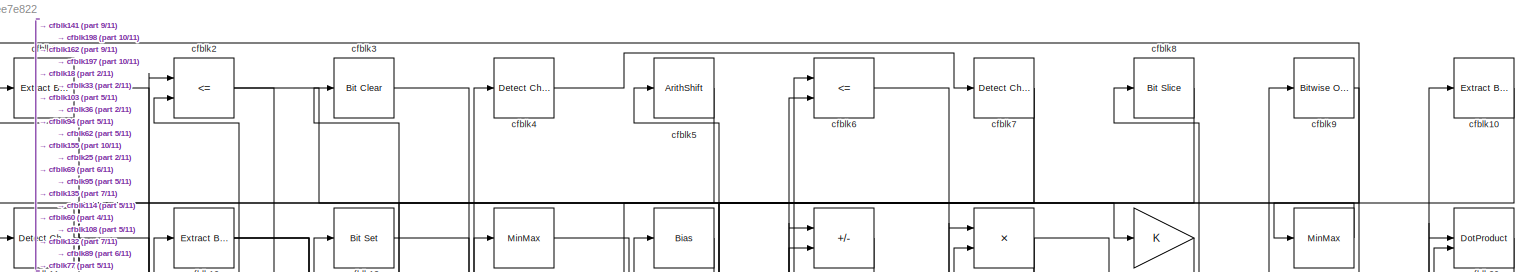
[diagram: root canvas - part 1/11, full width, top band]
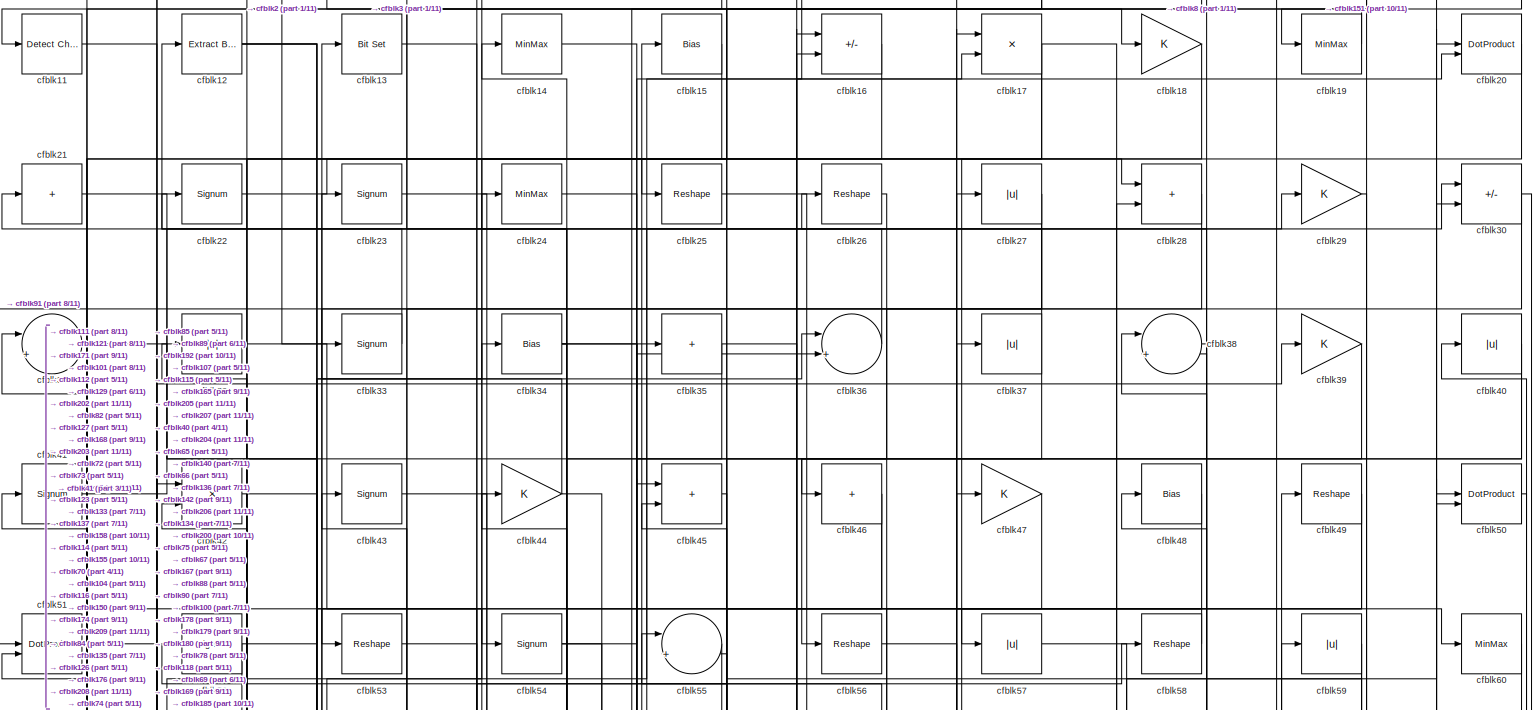
[diagram: root canvas - part 2/11, full width, top band]
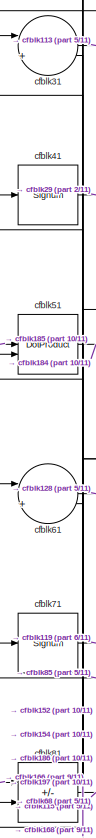
[diagram: root canvas - part 3/11, top left region]
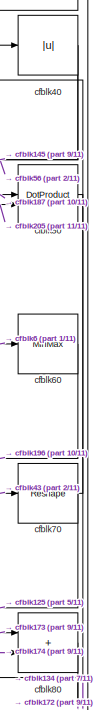
[diagram: root canvas - part 4/11, top right region]
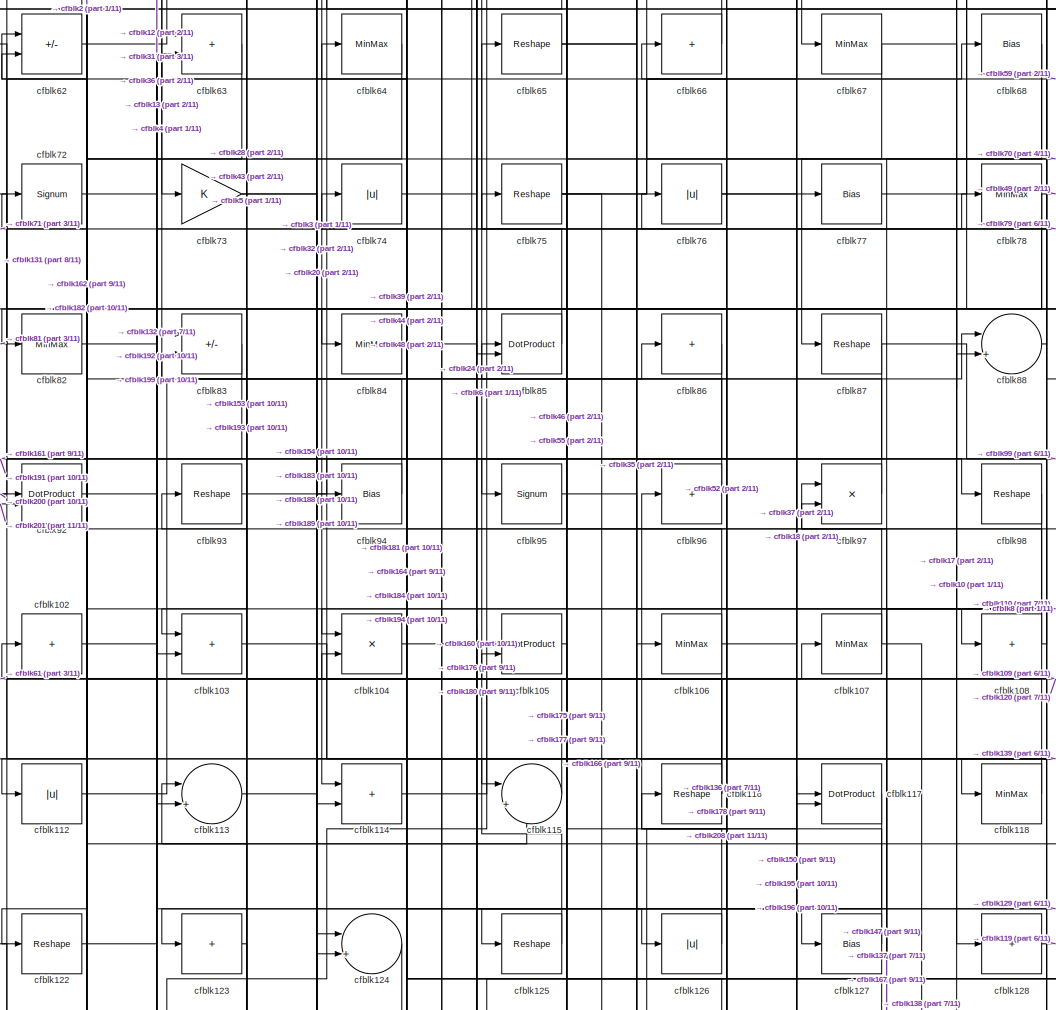
[diagram: root canvas - part 5/11, central region]
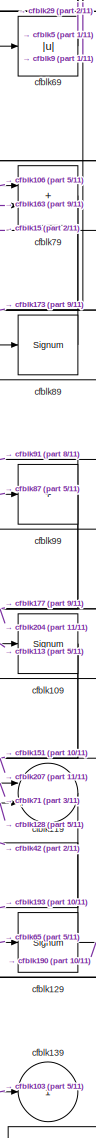
[diagram: root canvas - part 6/11, middle right region]
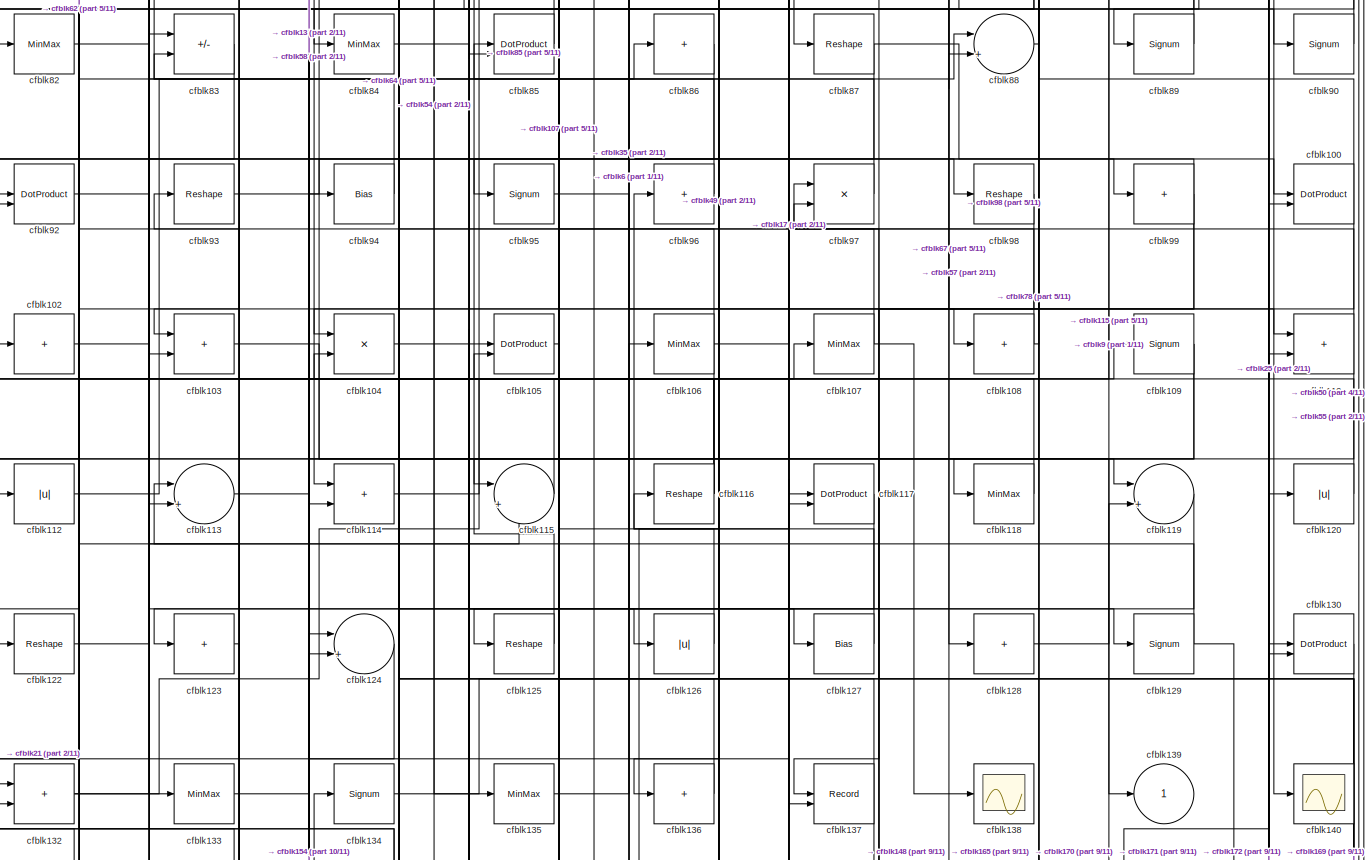
[diagram: root canvas - part 7/11, full width, middle band]
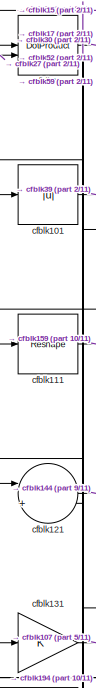
[diagram: root canvas - part 8/11, middle left region]
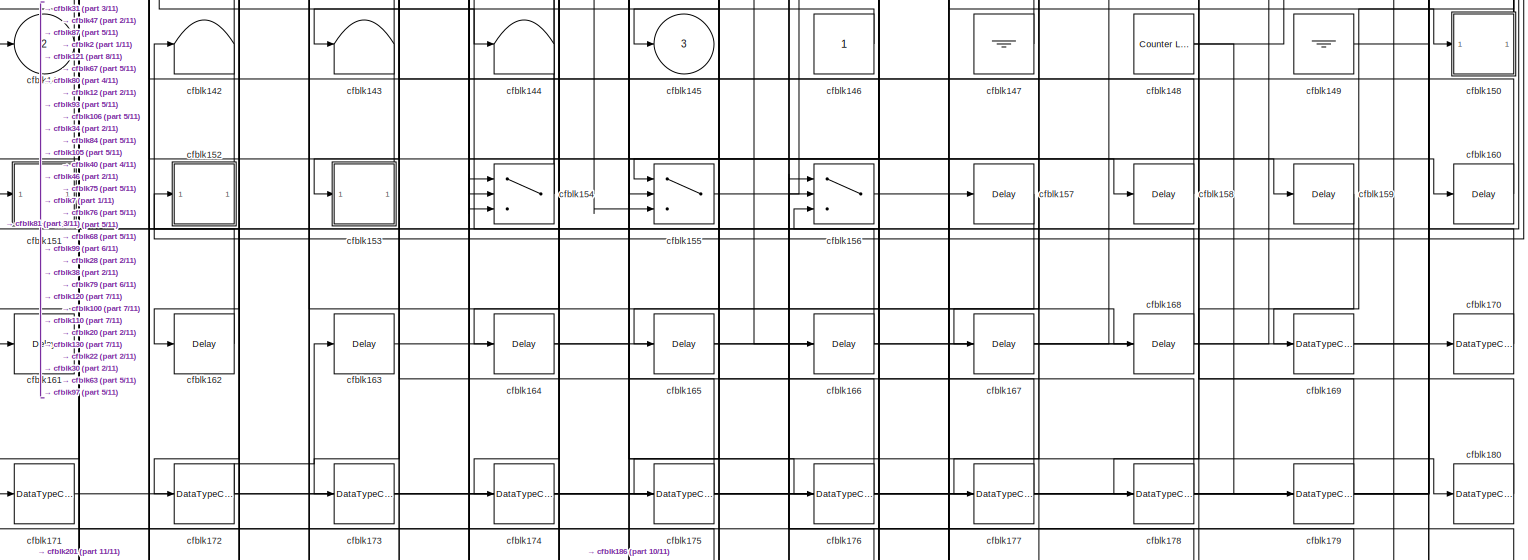
[diagram: root canvas - part 9/11, full width, bottom band]
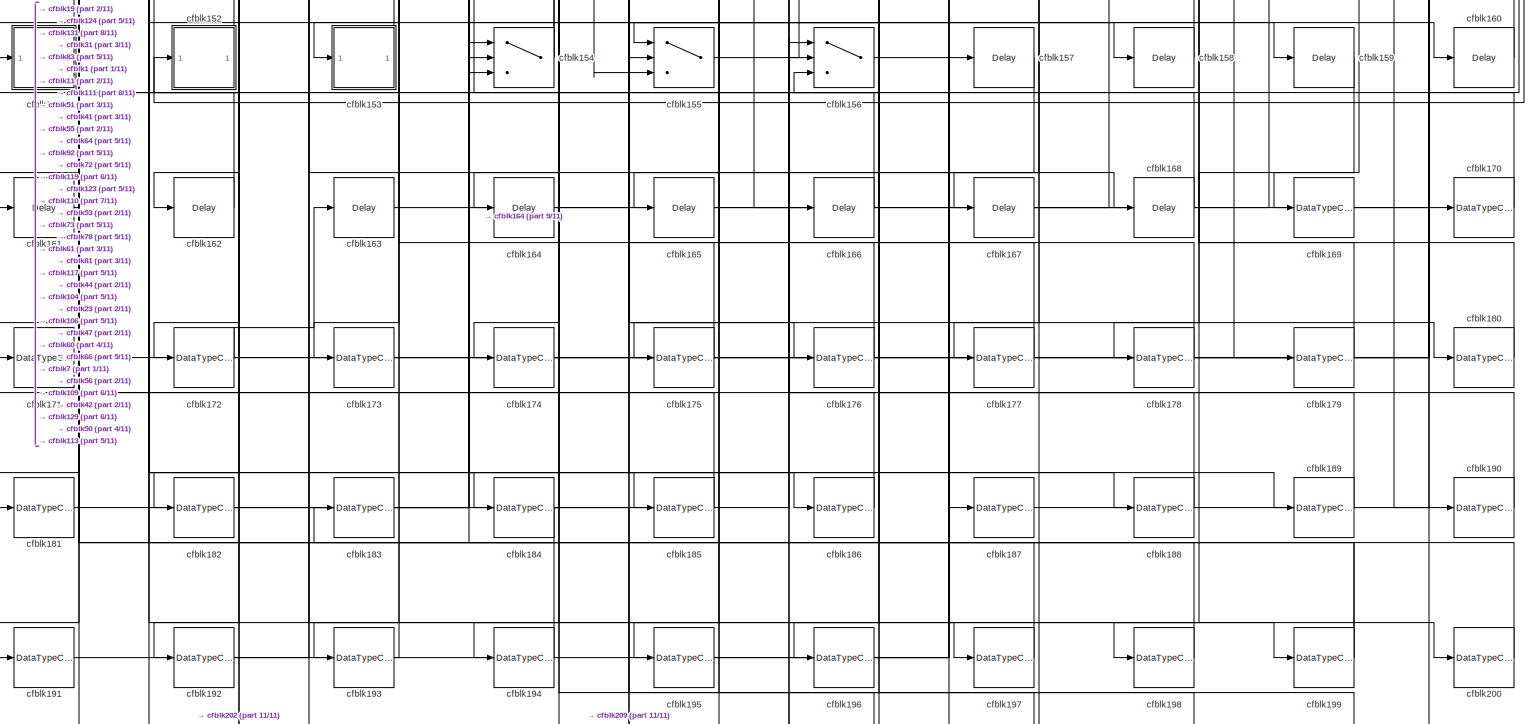
[diagram: root canvas - part 10/11, full width, bottom band]
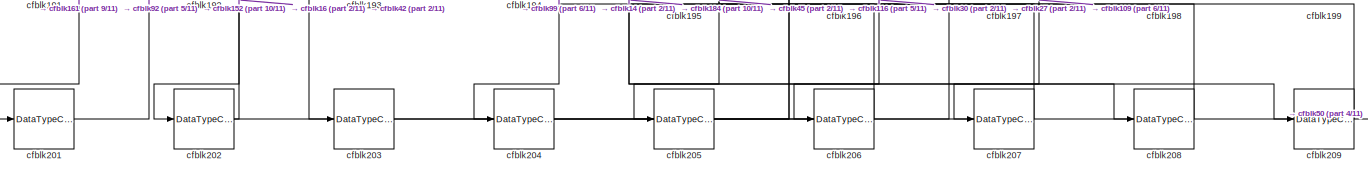
[diagram: root canvas - part 11/11, full width, bottom band]
MODEL slx_d59cbee7e822
KIND model
CONFIG AbsTol = auto
CONFIG EnableMultiTasking = off
CONFIG FixedStep = auto
CONFIG MaxStep = auto
CONFIG MinStep = auto
CONFIG RelTol = 1e-3
CONFIG SampleTimeConstraint = Unconstrained
CONFIG SolverName = VariableStepAuto
CONFIG StartTime = 0.0
CONFIG StopTime = 10.0
BLOCK [Reference] cfblk1  REF=simulink/Logic and Bit
Operations/Extract Bits
  LibrarySourceBlock = hdlsllib/Logic and Bit\nOperations/Extract Bits
  SourceBlock = simulink/Logic and Bit\nOperations/Extract Bits
  SourceType = Extract Bits
BLOCK [Reference] cfblk10  REF=simulink/Logic and Bit
Operations/Extract Bits
  LibrarySourceBlock = hdlsllib/Logic and Bit\nOperations/Extract Bits
  SourceBlock = simulink/Logic and Bit\nOperations/Extract Bits
  SourceType = Extract Bits
BLOCK [DotProduct] cfblk100
  OutDataTypeStr = Inherit: Inherit via internal rule
BLOCK [Abs] cfblk101
  SaturateOnIntegerOverflow = off
BLOCK [Sum] cfblk102
  IconShape = rectangular
  Inputs = +
BLOCK [Sum] cfblk103
  IconShape = rectangular
BLOCK [Product] cfblk104
  Inputs = */
  RndMeth = Zero
  SaturateOnIntegerOverflow = on
BLOCK [DotProduct] cfblk105
  OutDataTypeStr = Inherit: Inherit via internal rule
BLOCK [MinMax] cfblk106
BLOCK [MinMax] cfblk107
BLOCK [Sum] cfblk108
  IconShape = rectangular
  Inputs = +
BLOCK [Signum] cfblk109
BLOCK [Reference] cfblk11  REF=simulink/Logic and Bit
Operations/Detect
Change
  LibrarySourceBlock = hdlsllib/Logic and Bit\nOperations/Detect\nChange
  SourceBlock = simulink/Logic and Bit\nOperations/Detect\nChange
  SourceType = Detect Change
BLOCK [Sum] cfblk110
  IconShape = rectangular
BLOCK [Reshape] cfblk111
BLOCK [Abs] cfblk112
  SaturateOnIntegerOverflow = off
BLOCK [Sum] cfblk113
  Inputs = |++
BLOCK [Sum] cfblk114
  IconShape = rectangular
BLOCK [Sum] cfblk115
  Inputs = |++
BLOCK [Reshape] cfblk116
BLOCK [DotProduct] cfblk117
  OutDataTypeStr = Inherit: Inherit via internal rule
BLOCK [MinMax] cfblk118
BLOCK [Sum] cfblk119
  Inputs = |++
BLOCK [Reference] cfblk12  REF=simulink/Logic and Bit
Operations/Extract Bits
  LibrarySourceBlock = hdlsllib/Logic and Bit\nOperations/Extract Bits
  SourceBlock = simulink/Logic and Bit\nOperations/Extract Bits
  SourceType = Extract Bits
BLOCK [Abs] cfblk120
  SaturateOnIntegerOverflow = off
BLOCK [Sum] cfblk121
  Inputs = |++
BLOCK [Reshape] cfblk122
BLOCK [Sum] cfblk123
  IconShape = rectangular
  Inputs = +
BLOCK [Sum] cfblk124
  Inputs = |++
BLOCK [Reshape] cfblk125
BLOCK [Abs] cfblk126
  SaturateOnIntegerOverflow = off
BLOCK [Bias] cfblk127
  Bias = 0.0
  SaturateOnIntegerOverflow = off
BLOCK [Sum] cfblk128
  IconShape = rectangular
  Inputs = +
BLOCK [Signum] cfblk129
BLOCK [Reference] cfblk13  REF=simulink/Logic and Bit
Operations/Bit Set
  LibrarySourceBlock = hdlsllib/Logic and Bit\nOperations/Bit Set
  SourceBlock = simulink/Logic and Bit\nOperations/Bit Set
  SourceType = Bit Set
BLOCK [DotProduct] cfblk130
  OutDataTypeStr = Inherit: Inherit via internal rule
BLOCK [Gain] cfblk131
BLOCK [Sum] cfblk132
  IconShape = rectangular
BLOCK [MinMax] cfblk133
BLOCK [Signum] cfblk134
BLOCK [MinMax] cfblk135
BLOCK [Sum] cfblk136
  IconShape = rectangular
  Inputs = +
BLOCK [Record] cfblk137
  CompatibilityTag = XY
  FileSettingsInternal = {"entries":[{"content":{"excelSettings":{"content":{},"type":"Streamout.ExcelSettings"}},"type":"Streamout.FileSettingStorage","uuid":""}],"packageUris":["http:\/\/schema.mathworks.com\/mf0\/streamout_blocks\/R2020a"],"version":"1.0"}
  Layout = [1 1]
  SignalsInternal = {"entries":[{"content":{"signals":[{"content":{"blockPath":[],"dimensions":[1],"domain":"","lineColor":"#a2142f","plots":[1],"port":1,"sid":[""],"signalID":4255,"signalName":"cfblk98"},"type":"RecordBlkView.Signal","uuid":""},{"content":{"blockPath":[],"dimensions":[1],"domain":"","lineColor":"#139fff","plots":[1],"port":2,"sid":[""],"signalID":4259,"signalName":"cfblk13"},"type":"RecordBlkView.Si...<+162ch>
  VisualizationBindings = {"xyplotplugin":{"info":[{"series":[{"bindingParametersList":[{"parameter":"X-Axis","signalID":4255,"signalName":"cfblk98"},{"parameter":"Y-Axis","signalID":4259,"signalName":"cfblk13"}],"seriesID":22271}],"subplotID":1}]}}
  st = -1
BLOCK [Scope] cfblk138
  Floating = off
  NumInputPorts = 1
  ScopeSpecificationString = Simulink.scopes.TimeScopeBlockCfg('CurrentConfiguration', extmgr.ConfigurationSet(extmgr.Configuration('Core','General UI',true),extmgr.Configuration('Core','Source UI',true),extmgr.Configuration('Sources','WiredSimulink',true,'DataLoggingVariableName','ScopeData2','DataLoggingSaveFormat','Array','DataLoggingLimitDataPoints',true,'DataLoggingDecimation','1'),extmgr.Configuration('Visuals','Time Do...<+868ch>
BLOCK [Outport] cfblk139
  VectorParamsAs1DForOutWhenUnconnected = off
BLOCK [MinMax] cfblk14
BLOCK [Scope] cfblk140
  Floating = off
  NumInputPorts = 1
  ScopeSpecificationString = Simulink.scopes.TimeScopeBlockCfg('CurrentConfiguration', extmgr.ConfigurationSet(extmgr.Configuration('Core','General UI',true),extmgr.Configuration('Core','Source UI',true),extmgr.Configuration('Sources','WiredSimulink',true,'DataLoggingVariableName','ScopeData2','DataLoggingSaveFormat','Array','DataLoggingLimitDataPoints',true,'DataLoggingDecimation','1'),extmgr.Configuration('Visuals','Time Do...<+868ch>
BLOCK [Outport] cfblk141
  Port = 2
  VectorParamsAs1DForOutWhenUnconnected = off
BLOCK [Terminator] cfblk142
BLOCK [Terminator] cfblk143
BLOCK [Terminator] cfblk144
BLOCK [Outport] cfblk145
  Port = 3
  VectorParamsAs1DForOutWhenUnconnected = off
BLOCK [Constant] cfblk146
  SampleTime = -1
BLOCK [Ground] cfblk147
BLOCK [Reference] cfblk148  REF=hdlsllib/Sources/Counter
Limited
  SourceBlock = hdlsllib/Sources/Counter\nLimited
  SourceType = Counter Limited
BLOCK [Ground] cfblk149
BLOCK [Bias] cfblk15
  Bias = 0.0
  SaturateOnIntegerOverflow = off
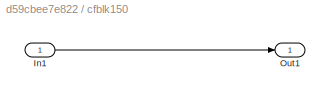
BLOCK [SubSystem] cfblk150
  LibrarySourceBlock = hdlsllib/Ports &\nSubsystems/Subsystem
BLOCK [Inport] cfblk150/In1
BLOCK [Outport] cfblk150/Out1
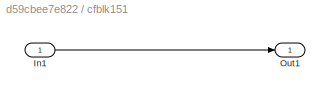
BLOCK [SubSystem] cfblk151
  LibrarySourceBlock = hdlsllib/Ports &\nSubsystems/Subsystem
BLOCK [Inport] cfblk151/In1
BLOCK [Outport] cfblk151/Out1
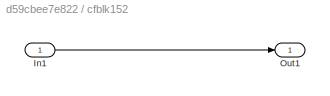
BLOCK [SubSystem] cfblk152
  LibrarySourceBlock = hdlsllib/Ports &\nSubsystems/Subsystem
BLOCK [Inport] cfblk152/In1
BLOCK [Outport] cfblk152/Out1
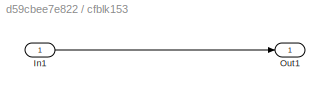
BLOCK [SubSystem] cfblk153
  LibrarySourceBlock = hdlsllib/Ports &\nSubsystems/Subsystem
BLOCK [Inport] cfblk153/In1
BLOCK [Outport] cfblk153/Out1
BLOCK [Switch] cfblk154
  InputSameDT = off
  SaturateOnIntegerOverflow = off
BLOCK [Switch] cfblk155
  InputSameDT = off
  SaturateOnIntegerOverflow = off
BLOCK [Switch] cfblk156
  InputSameDT = off
  SaturateOnIntegerOverflow = off
BLOCK [Delay] cfblk157
  InputPortMap = u0
  SampleTime = 1
BLOCK [Delay] cfblk158
  InputPortMap = u0
  SampleTime = 1
BLOCK [Delay] cfblk159
  InputPortMap = u0
  SampleTime = 1
BLOCK [Sum] cfblk16
  IconShape = rectangular
  Inputs = +-
BLOCK [Delay] cfblk160
  InputPortMap = u0
  SampleTime = 1
BLOCK [Delay] cfblk161
  InputPortMap = u0
  SampleTime = 1
BLOCK [Delay] cfblk162
  InputPortMap = u0
  SampleTime = 1
BLOCK [Delay] cfblk163
  InputPortMap = u0
  SampleTime = 1
BLOCK [Delay] cfblk164
  InputPortMap = u0
  SampleTime = 1
BLOCK [Delay] cfblk165
  InputPortMap = u0
  SampleTime = 1
BLOCK [Delay] cfblk166
  InputPortMap = u0
  SampleTime = 1
BLOCK [Delay] cfblk167
  InputPortMap = u0
  SampleTime = 1
BLOCK [Delay] cfblk168
  InputPortMap = u0
  SampleTime = 1
BLOCK [DataTypeConversion] cfblk169
  OutDataTypeStr = uint8
  RndMeth = Floor
  SaturateOnIntegerOverflow = off
BLOCK [Product] cfblk17
  Inputs = */
  RndMeth = Zero
  SaturateOnIntegerOverflow = on
BLOCK [DataTypeConversion] cfblk170
  OutDataTypeStr = uint8
  RndMeth = Floor
  SaturateOnIntegerOverflow = off
BLOCK [DataTypeConversion] cfblk171
  OutDataTypeStr = uint8
  RndMeth = Floor
  SaturateOnIntegerOverflow = off
BLOCK [DataTypeConversion] cfblk172
  RndMeth = Floor
  SaturateOnIntegerOverflow = off
BLOCK [DataTypeConversion] cfblk173
  OutDataTypeStr = uint8
  RndMeth = Floor
  SaturateOnIntegerOverflow = off
BLOCK [DataTypeConversion] cfblk174
  OutDataTypeStr = uint8
  RndMeth = Floor
  SaturateOnIntegerOverflow = off
BLOCK [DataTypeConversion] cfblk175
  OutDataTypeStr = uint8
  RndMeth = Floor
  SaturateOnIntegerOverflow = off
BLOCK [DataTypeConversion] cfblk176
  OutDataTypeStr = uint8
  RndMeth = Floor
  SaturateOnIntegerOverflow = off
BLOCK [DataTypeConversion] cfblk177
  OutDataTypeStr = uint8
  RndMeth = Floor
  SaturateOnIntegerOverflow = off
BLOCK [DataTypeConversion] cfblk178
  RndMeth = Floor
  SaturateOnIntegerOverflow = off
BLOCK [DataTypeConversion] cfblk179
  OutDataTypeStr = uint8
  RndMeth = Floor
  SaturateOnIntegerOverflow = off
BLOCK [Gain] cfblk18
BLOCK [DataTypeConversion] cfblk180
  OutDataTypeStr = uint8
  RndMeth = Floor
  SaturateOnIntegerOverflow = off
BLOCK [DataTypeConversion] cfblk181
  OutDataTypeStr = uint8
  RndMeth = Floor
  SaturateOnIntegerOverflow = off
BLOCK [DataTypeConversion] cfblk182
  OutDataTypeStr = uint8
  RndMeth = Floor
  SaturateOnIntegerOverflow = off
BLOCK [DataTypeConversion] cfblk183
  OutDataTypeStr = uint8
  RndMeth = Floor
  SaturateOnIntegerOverflow = off
BLOCK [DataTypeConversion] cfblk184
  RndMeth = Floor
  SaturateOnIntegerOverflow = off
BLOCK [DataTypeConversion] cfblk185
  OutDataTypeStr = uint8
  RndMeth = Floor
  SaturateOnIntegerOverflow = off
BLOCK [DataTypeConversion] cfblk186
  OutDataTypeStr = uint8
  RndMeth = Floor
  SaturateOnIntegerOverflow = off
BLOCK [DataTypeConversion] cfblk187
  OutDataTypeStr = uint8
  RndMeth = Floor
  SaturateOnIntegerOverflow = off
BLOCK [DataTypeConversion] cfblk188
  OutDataTypeStr = uint8
  RndMeth = Floor
  SaturateOnIntegerOverflow = off
BLOCK [DataTypeConversion] cfblk189
  OutDataTypeStr = uint8
  RndMeth = Floor
  SaturateOnIntegerOverflow = off
BLOCK [MinMax] cfblk19
BLOCK [DataTypeConversion] cfblk190
  OutDataTypeStr = uint8
  RndMeth = Floor
  SaturateOnIntegerOverflow = off
BLOCK [DataTypeConversion] cfblk191
  OutDataTypeStr = uint8
  RndMeth = Floor
  SaturateOnIntegerOverflow = off
BLOCK [DataTypeConversion] cfblk192
  OutDataTypeStr = uint8
  RndMeth = Floor
  SaturateOnIntegerOverflow = off
BLOCK [DataTypeConversion] cfblk193
  OutDataTypeStr = uint8
  RndMeth = Floor
  SaturateOnIntegerOverflow = off
BLOCK [DataTypeConversion] cfblk194
  OutDataTypeStr = uint8
  RndMeth = Floor
  SaturateOnIntegerOverflow = off
BLOCK [DataTypeConversion] cfblk195
  OutDataTypeStr = uint8
  RndMeth = Floor
  SaturateOnIntegerOverflow = off
BLOCK [DataTypeConversion] cfblk196
  OutDataTypeStr = uint8
  RndMeth = Floor
  SaturateOnIntegerOverflow = off
BLOCK [DataTypeConversion] cfblk197
  OutDataTypeStr = uint8
  RndMeth = Floor
  SaturateOnIntegerOverflow = off
BLOCK [DataTypeConversion] cfblk198
  OutDataTypeStr = uint8
  RndMeth = Floor
  SaturateOnIntegerOverflow = off
BLOCK [DataTypeConversion] cfblk199
  RndMeth = Floor
  SaturateOnIntegerOverflow = off
BLOCK [RelationalOperator] cfblk2
  InputSameDT = off
  Operator = <=
  OutDataTypeStr = boolean
BLOCK [DotProduct] cfblk20
  OutDataTypeStr = Inherit: Inherit via internal rule
BLOCK [DataTypeConversion] cfblk200
  OutDataTypeStr = uint8
  RndMeth = Floor
  SaturateOnIntegerOverflow = off
BLOCK [DataTypeConversion] cfblk201
  OutDataTypeStr = uint8
  RndMeth = Floor
  SaturateOnIntegerOverflow = off
BLOCK [DataTypeConversion] cfblk202
  RndMeth = Floor
  SaturateOnIntegerOverflow = off
BLOCK [DataTypeConversion] cfblk203
  OutDataTypeStr = uint8
  RndMeth = Floor
  SaturateOnIntegerOverflow = off
BLOCK [DataTypeConversion] cfblk204
  OutDataTypeStr = uint8
  RndMeth = Floor
  SaturateOnIntegerOverflow = off
BLOCK [DataTypeConversion] cfblk205
  OutDataTypeStr = uint8
  RndMeth = Floor
  SaturateOnIntegerOverflow = off
BLOCK [DataTypeConversion] cfblk206
  OutDataTypeStr = uint8
  RndMeth = Floor
  SaturateOnIntegerOverflow = off
BLOCK [DataTypeConversion] cfblk207
  OutDataTypeStr = uint8
  RndMeth = Floor
  SaturateOnIntegerOverflow = off
BLOCK [DataTypeConversion] cfblk208
  OutDataTypeStr = uint8
  RndMeth = Floor
  SaturateOnIntegerOverflow = off
BLOCK [DataTypeConversion] cfblk209
  OutDataTypeStr = uint8
  RndMeth = Floor
  SaturateOnIntegerOverflow = off
BLOCK [Sum] cfblk21
  IconShape = rectangular
  Inputs = +
BLOCK [Signum] cfblk22
BLOCK [Signum] cfblk23
BLOCK [MinMax] cfblk24
BLOCK [Reshape] cfblk25
BLOCK [Reshape] cfblk26
BLOCK [Abs] cfblk27
  SaturateOnIntegerOverflow = off
BLOCK [Sum] cfblk28
  IconShape = rectangular
BLOCK [Gain] cfblk29
BLOCK [Reference] cfblk3  REF=simulink/Logic and Bit
Operations/Bit Clear
  LibrarySourceBlock = hdlsllib/Logic and Bit\nOperations/Bit Clear
  SourceBlock = simulink/Logic and Bit\nOperations/Bit Clear
  SourceType = Bit Clear
BLOCK [Sum] cfblk30
  IconShape = rectangular
  Inputs = +-
BLOCK [Sum] cfblk31
  Inputs = |++
BLOCK [Abs] cfblk32
  SaturateOnIntegerOverflow = off
BLOCK [Signum] cfblk33
BLOCK [Bias] cfblk34
  Bias = 0.0
  SaturateOnIntegerOverflow = off
BLOCK [Sum] cfblk35
  IconShape = rectangular
  Inputs = +
BLOCK [Sum] cfblk36
  Inputs = |++
BLOCK [Abs] cfblk37
  SaturateOnIntegerOverflow = off
BLOCK [Sum] cfblk38
  Inputs = |++
BLOCK [Gain] cfblk39
BLOCK [Reference] cfblk4  REF=simulink/Logic and Bit
Operations/Detect
Change
  LibrarySourceBlock = hdlsllib/Logic and Bit\nOperations/Detect\nChange
  SourceBlock = simulink/Logic and Bit\nOperations/Detect\nChange
  SourceType = Detect Change
BLOCK [Abs] cfblk40
  SaturateOnIntegerOverflow = off
BLOCK [Signum] cfblk41
BLOCK [Product] cfblk42
  Inputs = */
  RndMeth = Zero
  SaturateOnIntegerOverflow = on
BLOCK [Signum] cfblk43
BLOCK [Gain] cfblk44
BLOCK [Sum] cfblk45
  IconShape = rectangular
BLOCK [Sum] cfblk46
  IconShape = rectangular
  Inputs = +
BLOCK [Gain] cfblk47
BLOCK [Bias] cfblk48
  Bias = 0.0
  SaturateOnIntegerOverflow = off
BLOCK [Reshape] cfblk49
BLOCK [ArithShift] cfblk5
  BitShiftNumber = 8
  InputPortMap = u0
BLOCK [DotProduct] cfblk50
  OutDataTypeStr = Inherit: Inherit via internal rule
BLOCK [DotProduct] cfblk51
  OutDataTypeStr = Inherit: Inherit via internal rule
BLOCK [Signum] cfblk52
BLOCK [Reshape] cfblk53
BLOCK [Signum] cfblk54
BLOCK [Sum] cfblk55
  Inputs = |++
BLOCK [Reshape] cfblk56
BLOCK [Abs] cfblk57
  SaturateOnIntegerOverflow = off
BLOCK [Reshape] cfblk58
BLOCK [Abs] cfblk59
  SaturateOnIntegerOverflow = off
BLOCK [RelationalOperator] cfblk6
  InputSameDT = off
  Operator = <=
  OutDataTypeStr = boolean
BLOCK [MinMax] cfblk60
BLOCK [Sum] cfblk61
  Inputs = |++
BLOCK [Sum] cfblk62
  IconShape = rectangular
  Inputs = +-
BLOCK [Sum] cfblk63
  IconShape = rectangular
BLOCK [MinMax] cfblk64
BLOCK [Reshape] cfblk65
BLOCK [Sum] cfblk66
  IconShape = rectangular
  Inputs = +
BLOCK [MinMax] cfblk67
BLOCK [Bias] cfblk68
  Bias = 0.0
  SaturateOnIntegerOverflow = off
BLOCK [Abs] cfblk69
  SaturateOnIntegerOverflow = off
BLOCK [Reference] cfblk7  REF=simulink/Logic and Bit
Operations/Detect
Change
  LibrarySourceBlock = hdlsllib/Logic and Bit\nOperations/Detect\nChange
  SourceBlock = simulink/Logic and Bit\nOperations/Detect\nChange
  SourceType = Detect Change
BLOCK [Reshape] cfblk70
BLOCK [Signum] cfblk71
BLOCK [Signum] cfblk72
BLOCK [Gain] cfblk73
BLOCK [Abs] cfblk74
  SaturateOnIntegerOverflow = off
BLOCK [Reshape] cfblk75
BLOCK [Abs] cfblk76
  SaturateOnIntegerOverflow = off
BLOCK [Bias] cfblk77
  Bias = 0.0
  SaturateOnIntegerOverflow = off
BLOCK [MinMax] cfblk78
BLOCK [Sum] cfblk79
  IconShape = rectangular
BLOCK [Reference] cfblk8  REF=hdlsllib/Logic and Bit
Operations/Bit Slice
  SourceBlock = hdlsllib/Logic and Bit\nOperations/Bit Slice
  SourceType = Bit Slice
BLOCK [Sum] cfblk80
  IconShape = rectangular
BLOCK [Sum] cfblk81
  IconShape = rectangular
  Inputs = +-
BLOCK [MinMax] cfblk82
BLOCK [Sum] cfblk83
  IconShape = rectangular
  Inputs = +-
BLOCK [MinMax] cfblk84
BLOCK [DotProduct] cfblk85
  OutDataTypeStr = Inherit: Inherit via internal rule
BLOCK [Sum] cfblk86
  IconShape = rectangular
  Inputs = +
BLOCK [Reshape] cfblk87
BLOCK [Sum] cfblk88
  Inputs = |++
BLOCK [Signum] cfblk89
BLOCK [Reference] cfblk9  REF=simulink/Logic and Bit
Operations/Bitwise
Operator
  LibrarySourceBlock = hdlsllib/Logic and Bit\nOperations/Bitwise\nOperator
  SourceBlock = simulink/Logic and Bit\nOperations/Bitwise\nOperator
  SourceType = Bitwise Operator
BLOCK [Signum] cfblk90
BLOCK [DotProduct] cfblk91
  OutDataTypeStr = Inherit: Inherit via internal rule
BLOCK [DotProduct] cfblk92
  OutDataTypeStr = Inherit: Inherit via internal rule
BLOCK [Reshape] cfblk93
BLOCK [Bias] cfblk94
  Bias = 0.0
  SaturateOnIntegerOverflow = off
BLOCK [Signum] cfblk95
BLOCK [Sum] cfblk96
  IconShape = rectangular
  Inputs = +
BLOCK [Product] cfblk97
  Inputs = */
  RndMeth = Zero
  SaturateOnIntegerOverflow = on
BLOCK [Reshape] cfblk98
BLOCK [Sum] cfblk99
  IconShape = rectangular
  Inputs = +
NET cfblk100:1 -> cfblk132:1, cfblk21:1
LINE cfblk101:1 -> cfblk39:1
LINE cfblk102:1 -> cfblk63:1
LINE cfblk103:1 -> cfblk139:1
LINE cfblk104:1 -> cfblk160:1
LINE cfblk105:1 -> cfblk175:1
NET cfblk106:1 -> cfblk164:1, cfblk62:2, cfblk79:1
NET cfblk107:1 -> cfblk138:1, cfblk55:1
NET cfblk108:1 -> cfblk8:1, cfblk97:1
NET cfblk109:1 -> cfblk151:1, cfblk207:1
LINE cfblk10:1 -> cfblk95:1
NET cfblk110:1 -> cfblk154:3, cfblk64:1
LINE cfblk111:1 -> cfblk159:1
LINE cfblk112:1 -> cfblk86:1
LINE cfblk113:1 -> cfblk109:1
LINE cfblk114:1 -> cfblk6:1
LINE cfblk115:1 -> cfblk61:2
NET cfblk116:1 -> cfblk32:1, cfblk43:1, cfblk44:1
LINE cfblk117:1 -> cfblk194:1
LINE cfblk118:1 -> cfblk24:1
LINE cfblk119:1 -> cfblk193:1
LINE cfblk11:1 -> cfblk185:1
LINE cfblk120:1 -> cfblk62:1
LINE cfblk121:1 -> cfblk144:1
LINE cfblk122:1 -> cfblk88:1
LINE cfblk123:1 -> cfblk153:1
LINE cfblk124:1 -> cfblk181:1
LINE cfblk125:1 -> cfblk65:1
LINE cfblk126:1 -> cfblk96:1
LINE cfblk127:1 -> cfblk102:1
LINE cfblk128:1 -> cfblk119:2
NET cfblk129:1 -> cfblk190:1, cfblk42:2
NET cfblk12:1 -> cfblk127:1, cfblk168:1, cfblk54:1
LINE cfblk130:1 -> cfblk169:1
LINE cfblk131:1 -> cfblk107:1
NET cfblk132:1 -> cfblk115:2, cfblk9:1
LINE cfblk133:1 -> cfblk58:1
LINE cfblk134:1 -> cfblk17:1
LINE cfblk135:1 -> cfblk6:2
LINE cfblk136:1 -> cfblk85:1
LINE cfblk13:1 -> cfblk137:2
LINE cfblk146:1 -> cfblk143:1
LINE cfblk147:1 -> cfblk74:1
NET cfblk148:1 -> cfblk120:1, cfblk179:1
LINE cfblk149:1 -> cfblk170:1
LINE cfblk14:1 -> cfblk208:1
LINE cfblk150/In1:1 -> cfblk150/Out1:1
NET cfblk150:1 -> cfblk22:1, cfblk63:2, cfblk97:2
LINE cfblk151/In1:1 -> cfblk151/Out1:1
LINE cfblk151:1 -> cfblk19:1
LINE cfblk152/In1:1 -> cfblk152/Out1:1
LINE cfblk152:1 -> cfblk41:1
LINE cfblk153/In1:1 -> cfblk153/Out1:1
LINE cfblk153:1 -> cfblk72:1
NET cfblk154:1 -> cfblk61:1, cfblk81:2
LINE cfblk155:1 -> cfblk47:1
LINE cfblk156:1 -> cfblk187:1
LINE cfblk157:1 -> cfblk195:1
LINE cfblk158:1 -> cfblk42:1
LINE cfblk159:1 -> cfblk198:1
LINE cfblk15:1 -> cfblk121:1
LINE cfblk160:1 -> cfblk113:1
LINE cfblk161:1 -> cfblk201:1
LINE cfblk162:1 -> cfblk2:1
LINE cfblk163:1 -> cfblk79:2
LINE cfblk164:1 -> cfblk186:1
LINE cfblk165:1 -> cfblk110:2
LINE cfblk166:1 -> cfblk81:1
LINE cfblk167:1 -> cfblk28:2
LINE cfblk168:1 -> cfblk31:2
LINE cfblk169:1 -> cfblk20:1
LINE cfblk16:1 -> cfblk202:1
LINE cfblk170:1 -> cfblk130:1
LINE cfblk171:1 -> cfblk130:2
NET cfblk172:1 -> cfblk100:2, cfblk163:1
LINE cfblk173:1 -> cfblk80:1
LINE cfblk174:1 -> cfblk80:2
LINE cfblk175:1 -> cfblk93:1
LINE cfblk176:1 -> cfblk105:1
LINE cfblk177:1 -> cfblk105:2
NET cfblk178:1 -> cfblk30:2, cfblk76:1
LINE cfblk179:1 -> cfblk38:1
NET cfblk17:1 -> cfblk111:1, cfblk112:1, cfblk88:2
LINE cfblk180:1 -> cfblk38:2
LINE cfblk181:1 -> cfblk106:1
LINE cfblk182:1 -> cfblk124:1
LINE cfblk183:1 -> cfblk124:2
NET cfblk184:1 -> cfblk104:2, cfblk183:1, cfblk209:1
LINE cfblk185:1 -> cfblk51:1
LINE cfblk186:1 -> cfblk51:2
LINE cfblk187:1 -> cfblk50:1
LINE cfblk188:1 -> cfblk156:1
LINE cfblk189:1 -> cfblk156:2
LINE cfblk18:1 -> cfblk67:1
LINE cfblk190:1 -> cfblk156:3
LINE cfblk191:1 -> cfblk157:1
LINE cfblk192:1 -> cfblk83:1
LINE cfblk193:1 -> cfblk83:2
LINE cfblk194:1 -> cfblk131:1
LINE cfblk195:1 -> cfblk117:1
LINE cfblk196:1 -> cfblk117:2
LINE cfblk197:1 -> cfblk31:1
LINE cfblk198:1 -> cfblk1:1
NET cfblk199:1 -> cfblk154:1, cfblk66:1
LINE cfblk19:1 -> cfblk11:1
LINE cfblk1:1 -> cfblk197:1
LINE cfblk200:1 -> cfblk92:1
LINE cfblk201:1 -> cfblk92:2
NET cfblk202:1 -> cfblk152:1, cfblk27:1
LINE cfblk203:1 -> cfblk16:1
LINE cfblk204:1 -> cfblk16:2
LINE cfblk205:1 -> cfblk50:2
LINE cfblk206:1 -> cfblk45:1
LINE cfblk207:1 -> cfblk45:2
LINE cfblk208:1 -> cfblk116:1
LINE cfblk209:1 -> cfblk14:1
LINE cfblk20:1 -> cfblk114:1
LINE cfblk21:1 -> cfblk133:1
LINE cfblk22:1 -> cfblk28:1
LINE cfblk23:1 -> cfblk155:2
LINE cfblk24:1 -> cfblk126:1
LINE cfblk25:1 -> cfblk140:1
LINE cfblk26:1 -> cfblk46:1
NET cfblk27:1 -> cfblk53:1, cfblk91:2
LINE cfblk28:1 -> cfblk123:1
LINE cfblk29:1 -> cfblk69:1
NET cfblk2:1 -> cfblk18:1, cfblk33:1
NET cfblk30:1 -> cfblk142:1, cfblk206:1
LINE cfblk31:1 -> cfblk113:2
LINE cfblk32:1 -> cfblk114:2
LINE cfblk33:1 -> cfblk12:1
NET cfblk34:1 -> cfblk174:1, cfblk176:1, cfblk36:2
NET cfblk35:1 -> cfblk100:1, cfblk82:1
LINE cfblk36:1 -> cfblk3:1
NET cfblk37:1 -> cfblk26:1, cfblk85:2
LINE cfblk38:1 -> cfblk178:1
LINE cfblk39:1 -> cfblk84:1
LINE cfblk3:1 -> cfblk94:1
NET cfblk40:1 -> cfblk145:1, cfblk56:1
LINE cfblk41:1 -> cfblk29:1
LINE cfblk42:1 -> cfblk203:1
LINE cfblk43:1 -> cfblk70:1
NET cfblk44:1 -> cfblk155:3, cfblk23:1
LINE cfblk45:1 -> cfblk205:1
NET cfblk46:1 -> cfblk165:1, cfblk73:1
LINE cfblk47:1 -> cfblk171:1
LINE cfblk48:1 -> cfblk104:1
NET cfblk49:1 -> cfblk115:1, cfblk136:1
LINE cfblk4:1 -> cfblk7:1
LINE cfblk50:1 -> cfblk134:1
LINE cfblk51:1 -> cfblk184:1
NET cfblk52:1 -> cfblk101:1, cfblk34:1
LINE cfblk53:1 -> cfblk158:1
NET cfblk54:1 -> cfblk135:1, cfblk35:1
LINE cfblk55:1 -> cfblk192:1
LINE cfblk56:1 -> cfblk200:1
LINE cfblk57:1 -> cfblk90:1
LINE cfblk58:1 -> cfblk57:1
NET cfblk59:1 -> cfblk118:1, cfblk121:2
LINE cfblk5:1 -> cfblk103:1
LINE cfblk60:1 -> cfblk196:1
LINE cfblk61:1 -> cfblk128:1
LINE cfblk62:1 -> cfblk4:1
LINE cfblk63:1 -> cfblk122:1
LINE cfblk64:1 -> cfblk182:1
NET cfblk65:1 -> cfblk129:1, cfblk17:2
LINE cfblk66:1 -> cfblk52:1
NET cfblk67:1 -> cfblk110:1, cfblk162:1
NET cfblk68:1 -> cfblk167:1, cfblk77:1
LINE cfblk69:1 -> cfblk5:1
LINE cfblk6:1 -> cfblk60:1
NET cfblk70:1 -> cfblk125:1, cfblk40:1
LINE cfblk71:1 -> cfblk119:1
LINE cfblk72:1 -> cfblk36:1
NET cfblk73:1 -> cfblk188:1, cfblk189:1
LINE cfblk74:1 -> cfblk20:2
NET cfblk75:1 -> cfblk166:1, cfblk37:1, cfblk59:1
NET cfblk76:1 -> cfblk150:1, cfblk87:1
LINE cfblk77:1 -> cfblk10:1
NET cfblk78:1 -> cfblk132:2, cfblk154:2, cfblk49:1
LINE cfblk79:1 -> cfblk173:1
NET cfblk7:1 -> cfblk141:1, cfblk155:1
LINE cfblk80:1 -> cfblk172:1
LINE cfblk81:1 -> cfblk68:1
LINE cfblk82:1 -> cfblk78:1
LINE cfblk83:1 -> cfblk191:1
LINE cfblk84:1 -> cfblk180:1
LINE cfblk85:1 -> cfblk71:1
LINE cfblk86:1 -> cfblk103:2
NET cfblk87:1 -> cfblk161:1, cfblk99:1
LINE cfblk88:1 -> cfblk48:1
LINE cfblk89:1 -> cfblk15:1
LINE cfblk8:1 -> cfblk25:1
LINE cfblk90:1 -> cfblk55:2
LINE cfblk91:1 -> cfblk30:1
LINE cfblk92:1 -> cfblk199:1
LINE cfblk93:1 -> cfblk98:1
LINE cfblk94:1 -> cfblk2:2
LINE cfblk95:1 -> cfblk108:1
LINE cfblk96:1 -> cfblk13:1
LINE cfblk97:1 -> cfblk75:1
LINE cfblk98:1 -> cfblk137:1
NET cfblk99:1 -> cfblk177:1, cfblk204:1, cfblk91:1
LINE cfblk9:1 -> cfblk89:1
note: NET lines group one-source signal fan-out (src -> all destinations, sorted); 1:1 wires keep LINE
